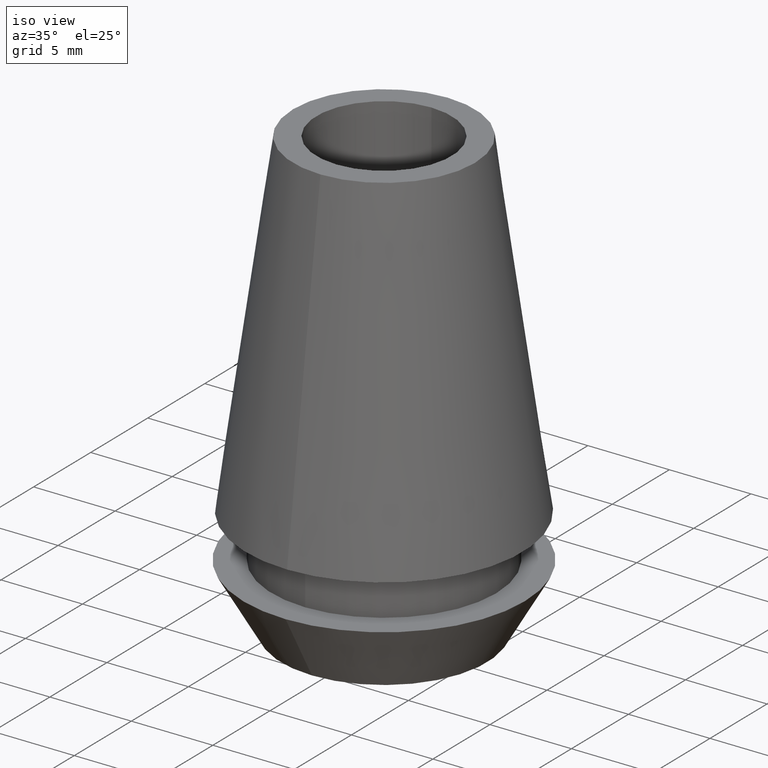
[diagram: clean part render]
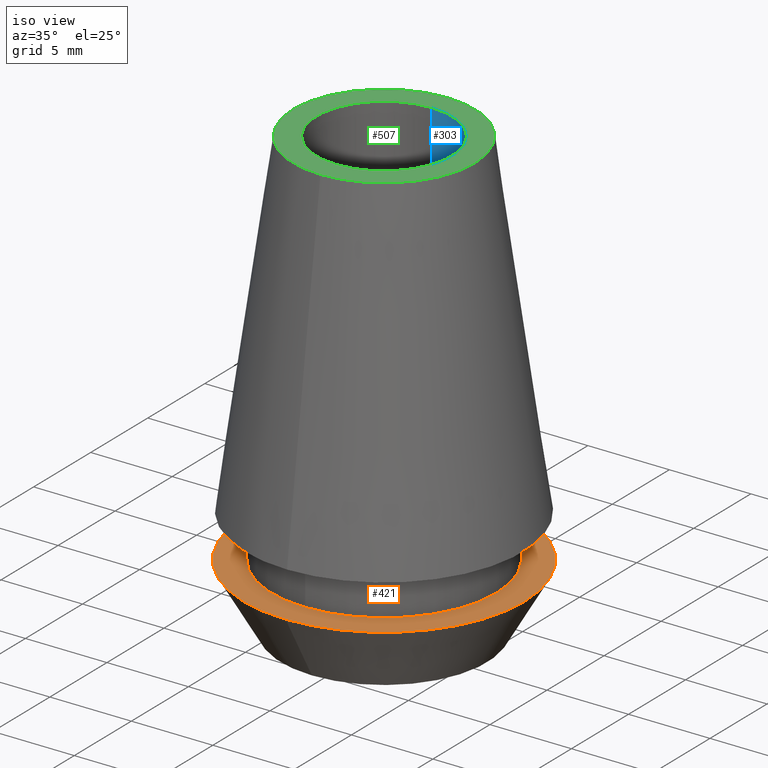
[diagram: same view with three faces highlighted in distinct colors, each labeled with its STEP entity id]
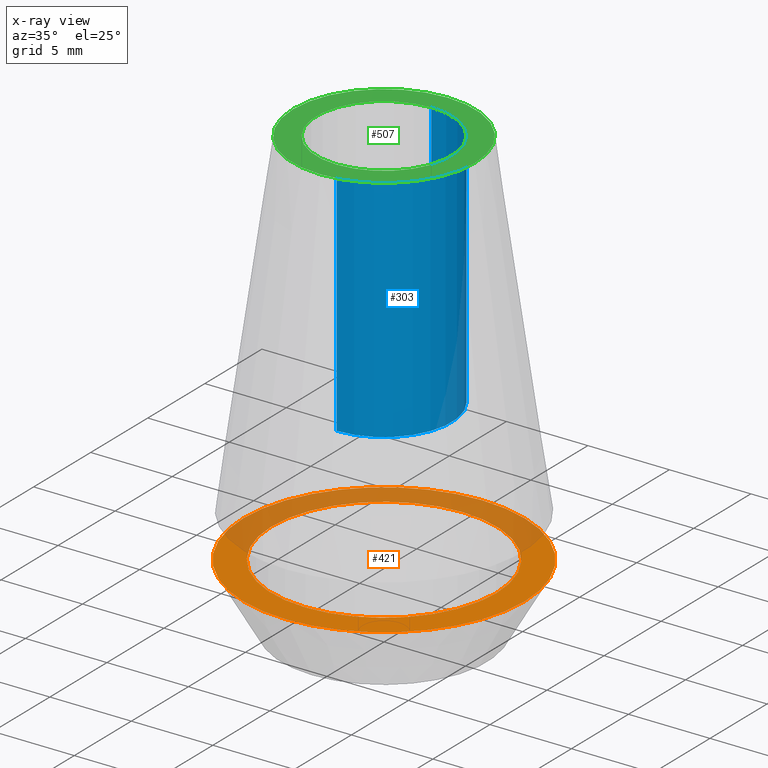
[diagram: x-ray of the same camera — body ghosted, the three highlighted faces saturated]
A machine part, iso view with three faces highlighted in distinct colors.
The next image is the same camera in x-ray (body ghosted, the three faces saturated) — at least one of them is partly hidden behind the body in this view.
Their STEP definitions:

[orange] entity #421 — the highlighted planar face has unit normal (0, 0, -1).
#124=CARTESIAN_POINT('',(0.E0,1.123490973538E-14,-2.35E1));
#125=DIRECTION('',(0.E0,0.E0,-1.E0));
#126=DIRECTION('',(0.E0,-1.E0,0.E0));
#127=AXIS2_PLACEMENT_3D('',#124,#125,#126);
#132=CARTESIAN_POINT('',(0.E0,1.123490973538E-14,-2.35E1));
#133=DIRECTION('',(0.E0,0.E0,-1.E0));
#134=DIRECTION('',(0.E0,1.E0,0.E0));
#135=AXIS2_PLACEMENT_3D('',#132,#133,#134);
#140=CARTESIAN_POINT('',(0.E0,1.452614800809E-14,-2.35E1));
#141=DIRECTION('',(0.E0,0.E0,1.E0));
#142=DIRECTION('',(0.E0,-1.E0,0.E0));
#143=AXIS2_PLACEMENT_3D('',#140,#141,#142);
#148=CARTESIAN_POINT('',(0.E0,1.452614800809E-14,-2.35E1));
#149=DIRECTION('',(0.E0,0.E0,1.E0));
#150=DIRECTION('',(0.E0,1.E0,0.E0));
#151=AXIS2_PLACEMENT_3D('',#148,#149,#150);
#268=CARTESIAN_POINT('',(0.E0,8.625E0,-2.35E1));
#269=VERTEX_POINT('',#268);
#270=CARTESIAN_POINT('',(0.E0,-8.625E0,-2.35E1));
#271=VERTEX_POINT('',#270);
#272=CARTESIAN_POINT('',(0.E0,-6.9E0,-2.35E1));
#273=CARTESIAN_POINT('',(0.E0,6.9E0,-2.35E1));
#274=VERTEX_POINT('',#272);
#275=VERTEX_POINT('',#273);
#406=CARTESIAN_POINT('',(0.E0,1.147983909521E-14,-2.35E1));
#407=DIRECTION('',(0.E0,0.E0,-1.E0));
#408=DIRECTION('',(0.E0,-1.E0,0.E0));
#409=AXIS2_PLACEMENT_3D('',#406,#407,#408);
#410=PLANE('',#409);
#411=ORIENTED_EDGE('',*,*,#399,.T.);
#412=ORIENTED_EDGE('',*,*,#388,.T.);
#413=EDGE_LOOP('',(#411,#412));
#414=FACE_OUTER_BOUND('',#413,.F.);
#416=ORIENTED_EDGE('',*,*,#415,.T.);
#418=ORIENTED_EDGE('',*,*,#417,.T.);
#419=EDGE_LOOP('',(#416,#418));
#420=FACE_BOUND('',#419,.F.);
#128=CIRCLE('',#127,8.625E0);
#136=CIRCLE('',#135,8.625E0);
#144=CIRCLE('',#143,6.9E0);
#152=CIRCLE('',#151,6.9E0);
#388=EDGE_CURVE('',#269,#271,#136,.T.);
#399=EDGE_CURVE('',#271,#269,#128,.T.);
#415=EDGE_CURVE('',#274,#275,#144,.T.);
#417=EDGE_CURVE('',#275,#274,#152,.T.);
#421=ADVANCED_FACE('',(#414,#420),#410,.F.);

[blue] entity #303 — the highlighted cylindrical surface (partial cylindrical patch) has radius 4.15 mm, axis along (0, 0, -1).
#17=DIRECTION('',(0.E0,0.E0,1.E0));
#18=VECTOR('',#17,1.4768E1);
#19=CARTESIAN_POINT('',(0.E0,4.15E0,-1.4768E1));
#20=LINE('',#19,#18);
#25=DIRECTION('',(0.E0,0.E0,1.E0));
#26=VECTOR('',#25,1.4768E1);
#27=CARTESIAN_POINT('',(0.E0,-4.15E0,-1.4768E1));
#28=LINE('',#27,#26);
#40=CARTESIAN_POINT('',(0.E0,1.452614800809E-14,-1.4768E1));
#41=DIRECTION('',(0.E0,0.E0,-1.E0));
#42=DIRECTION('',(0.E0,1.E0,0.E0));
#43=AXIS2_PLACEMENT_3D('',#40,#41,#42);
#232=CARTESIAN_POINT('',(0.E0,1.452614800809E-14,0.E0));
#233=DIRECTION('',(0.E0,0.E0,1.E0));
#234=DIRECTION('',(0.E0,-1.E0,0.E0));
#235=AXIS2_PLACEMENT_3D('',#232,#233,#234);
#248=CARTESIAN_POINT('',(0.E0,4.15E0,-1.4768E1));
#249=CARTESIAN_POINT('',(0.E0,4.15E0,0.E0));
#250=VERTEX_POINT('',#248);
#251=VERTEX_POINT('',#249);
#252=CARTESIAN_POINT('',(0.E0,-4.15E0,0.E0));
#253=VERTEX_POINT('',#252);
#254=CARTESIAN_POINT('',(0.E0,-4.15E0,-1.4768E1));
#255=VERTEX_POINT('',#254);
#288=CARTESIAN_POINT('',(0.E0,1.452614800809E-14,1.375E0));
#289=DIRECTION('',(0.E0,0.E0,-1.E0));
#290=DIRECTION('',(0.E0,-1.E0,0.E0));
#291=AXIS2_PLACEMENT_3D('',#288,#289,#290);
#292=CYLINDRICAL_SURFACE('',#291,4.15E0);
#294=ORIENTED_EDGE('',*,*,#293,.T.);
#296=ORIENTED_EDGE('',*,*,#295,.F.);
#298=ORIENTED_EDGE('',*,*,#297,.F.);
#300=ORIENTED_EDGE('',*,*,#299,.F.);
#301=EDGE_LOOP('',(#294,#296,#298,#300));
#302=FACE_OUTER_BOUND('',#301,.F.);
#44=CIRCLE('',#43,4.15E0);
#236=CIRCLE('',#235,4.15E0);
#293=EDGE_CURVE('',#250,#251,#20,.T.);
#295=EDGE_CURVE('',#253,#251,#236,.T.);
#297=EDGE_CURVE('',#255,#253,#28,.T.);
#299=EDGE_CURVE('',#250,#255,#44,.T.);
#303=ADVANCED_FACE('',(#302),#292,.F.);

[green] entity #507 — the highlighted planar face has unit normal (0, 0, -1).
#216=CARTESIAN_POINT('',(0.E0,1.308412640209E-14,-2.842170943040E-14));
#217=DIRECTION('',(0.E0,0.E0,-1.E0));
#218=DIRECTION('',(0.E0,-1.E0,0.E0));
#219=AXIS2_PLACEMENT_3D('',#216,#217,#218);
#224=CARTESIAN_POINT('',(0.E0,1.308412640209E-14,-2.842170943040E-14));
#225=DIRECTION('',(0.E0,0.E0,-1.E0));
#226=DIRECTION('',(0.E0,1.E0,0.E0));
#227=AXIS2_PLACEMENT_3D('',#224,#225,#226);
#232=CARTESIAN_POINT('',(0.E0,1.452614800809E-14,0.E0));
#233=DIRECTION('',(0.E0,0.E0,1.E0));
#234=DIRECTION('',(0.E0,-1.E0,0.E0));
#235=AXIS2_PLACEMENT_3D('',#232,#233,#234);
#240=CARTESIAN_POINT('',(0.E0,1.452614800809E-14,0.E0));
#241=DIRECTION('',(0.E0,0.E0,1.E0));
#242=DIRECTION('',(0.E0,1.E0,0.E0));
#243=AXIS2_PLACEMENT_3D('',#240,#241,#242);
#249=CARTESIAN_POINT('',(0.E0,4.15E0,0.E0));
#251=VERTEX_POINT('',#249);
#252=CARTESIAN_POINT('',(0.E0,-4.15E0,0.E0));
#253=VERTEX_POINT('',#252);
#284=CARTESIAN_POINT('',(0.E0,5.577076009731E0,-2.842170943040E-14));
#285=VERTEX_POINT('',#284);
#286=CARTESIAN_POINT('',(0.E0,-5.577076009731E0,-2.842170943040E-14));
#287=VERTEX_POINT('',#286);
#494=CARTESIAN_POINT('',(0.E0,1.435775907320E-14,0.E0));
#495=DIRECTION('',(0.E0,0.E0,-1.E0));
#496=DIRECTION('',(0.E0,-1.E0,0.E0));
#497=AXIS2_PLACEMENT_3D('',#494,#495,#496);
#498=PLANE('',#497);
#499=ORIENTED_EDGE('',*,*,#487,.T.);
#500=ORIENTED_EDGE('',*,*,#476,.T.);
#501=EDGE_LOOP('',(#499,#500));
#502=FACE_OUTER_BOUND('',#501,.F.);
#503=ORIENTED_EDGE('',*,*,#295,.T.);
#504=ORIENTED_EDGE('',*,*,#313,.T.);
#505=EDGE_LOOP('',(#503,#504));
#506=FACE_BOUND('',#505,.F.);
#220=CIRCLE('',#219,5.577076009731E0);
#228=CIRCLE('',#227,5.577076009731E0);
#236=CIRCLE('',#235,4.15E0);
#244=CIRCLE('',#243,4.15E0);
#295=EDGE_CURVE('',#253,#251,#236,.T.);
#313=EDGE_CURVE('',#251,#253,#244,.T.);
#476=EDGE_CURVE('',#285,#287,#228,.T.);
#487=EDGE_CURVE('',#287,#285,#220,.T.);
#507=ADVANCED_FACE('',(#502,#506),#498,.F.);